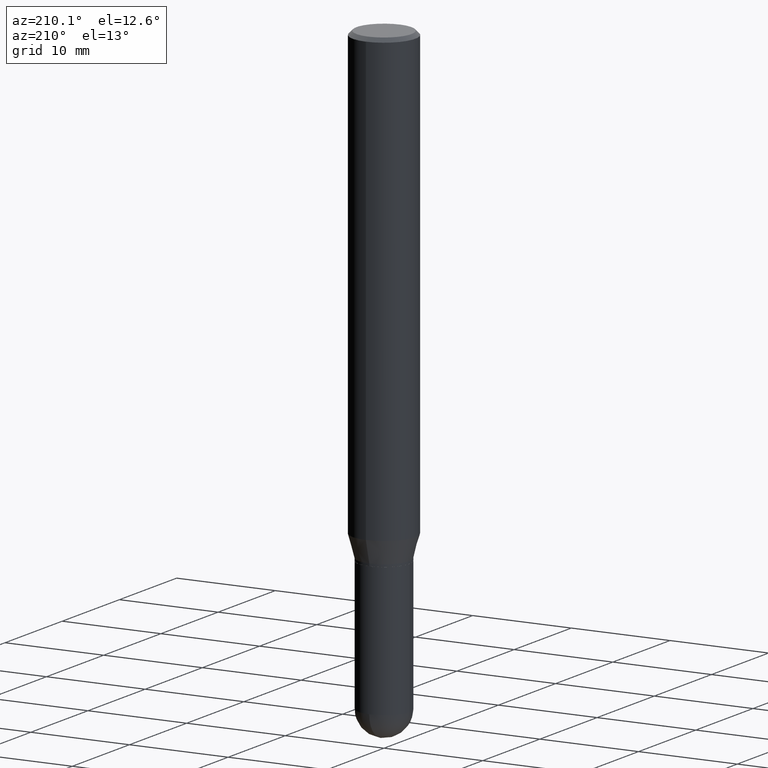
[diagram: clean part render]
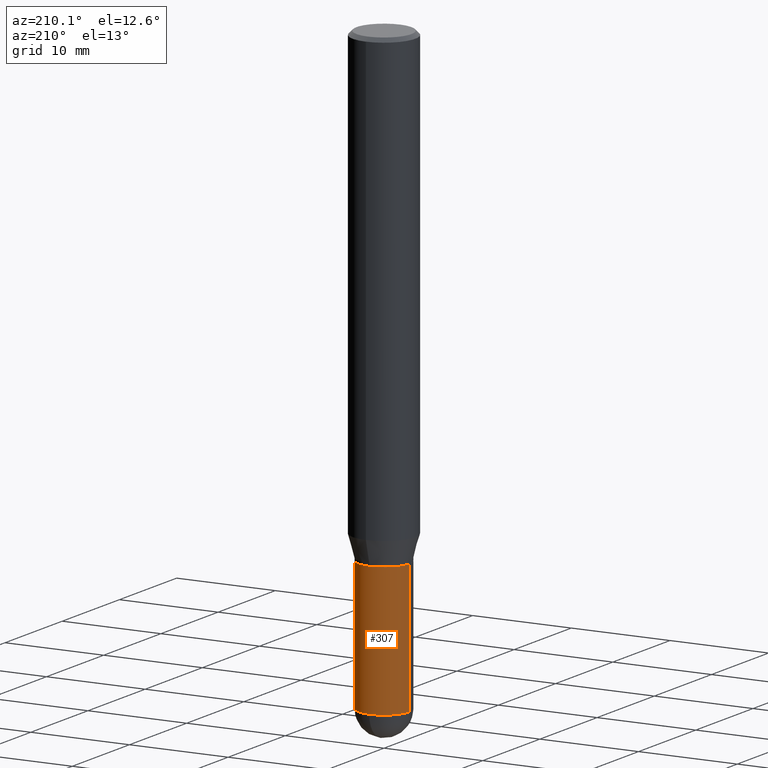
[diagram: same view with one face highlighted and labeled with its STEP entity id]
A machine part, auxiliary view. The second image highlights one B-rep face of the part: STEP entity #307.
In plain terms, the highlighted cylindrical surface (edge-blend (fillet) strip) has radius 2.5794 mm, axis along (-0, 0, 1).
Its self-contained STEP definition (entity closure, byte-faithful):
#14 = CARTESIAN_POINT ( 'NONE',  ( -0.1015500000000000708, 7.215561481643822416E-16, -4.995178584153860605E-30 ) ) ;
#25 = VECTOR ( 'NONE', #346, 39.37007874015748143 ) ;
#26 = CARTESIAN_POINT ( 'NONE',  ( -0.1015500000000000708, -6.738779315575238500E-15, -1.875000000000000000 ) ) ;
#37 = CYLINDRICAL_SURFACE ( 'NONE', #480, 0.1015500000000000708 ) ;
#38 = CARTESIAN_POINT ( 'NONE',  ( -0.1015500000000000985, -6.738779315575238500E-15, -2.398450000000000415 ) ) ;
#40 = AXIS2_PLACEMENT_3D ( 'NONE', #334, #251, #210 ) ;
#47 = DIRECTION ( 'NONE',  ( 1.000000000000000000, -6.982962677686269866E-15, 0.000000000000000000 ) ) ;
#57 = EDGE_CURVE ( 'NONE', #399, #166, #139, .T. ) ;
#64 = DIRECTION ( 'NONE',  ( 1.000000000000000000, -6.982962677686258033E-15, 0.000000000000000000 ) ) ;
#76 = CARTESIAN_POINT ( 'NONE',  ( 0.1015500000000000708, -7.255647370249939489E-15, -1.875000000000000000 ) ) ;
#103 = CARTESIAN_POINT ( 'NONE',  ( 0.1015500000000000985, -8.169455323658661228E-15, -2.398450000000000415 ) ) ;
#139 = CIRCLE ( 'NONE', #232, 0.1015500000000000985 ) ;
#152 = CARTESIAN_POINT ( 'NONE',  ( 0.1015500000000000708, -7.091198599190408807E-16, 4.951757515820776576E-30 ) ) ;
#156 = LINE ( 'NONE', #152, #25 ) ;
#161 = CARTESIAN_POINT ( 'NONE',  ( 0.000000000000000000, 0.000000000000000000, 0.000000000000000000 ) ) ;
#166 = VERTEX_POINT ( 'NONE', #189 ) ;
#184 = ORIENTED_EDGE ( 'NONE', *, *, #57, .T. ) ;
#189 = CARTESIAN_POINT ( 'NONE',  ( 7.091198599190993550E-16, 0.1015499999999916747, -2.398450000000000415 ) ) ;
#194 = EDGE_CURVE ( 'NONE', #399, #203, #156, .T. ) ;
#203 = VERTEX_POINT ( 'NONE', #76 ) ;
#210 = DIRECTION ( 'NONE',  ( 1.000000000000000000, -6.982962677686258033E-15, 0.000000000000000000 ) ) ;
#223 = VECTOR ( 'NONE', #447, 39.37007874015748143 ) ;
#232 = AXIS2_PLACEMENT_3D ( 'NONE', #302, #263, #64 ) ;
#236 = FACE_OUTER_BOUND ( 'NONE', #262, .T. ) ;
#248 = VERTEX_POINT ( 'NONE', #26 ) ;
#251 = DIRECTION ( 'NONE',  ( -2.445468806185136597E-29, 3.491481338843145583E-15, 1.000000000000000000 ) ) ;
#262 = EDGE_LOOP ( 'NONE', ( #407, #292, #294, #319, #184 ) ) ;
#263 = DIRECTION ( 'NONE',  ( -2.445468806185136597E-29, 3.491481338843145583E-15, 1.000000000000000000 ) ) ;
#269 = EDGE_CURVE ( 'NONE', #203, #248, #309, .T. ) ;
#292 = ORIENTED_EDGE ( 'NONE', *, *, #403, .T. ) ;
#294 = ORIENTED_EDGE ( 'NONE', *, *, #269, .F. ) ;
#302 = CARTESIAN_POINT ( 'NONE',  ( 5.865334658194741045E-29, -8.374143417148343763E-15, -2.398450000000000415 ) ) ;
#307 = ADVANCED_FACE ( 'NONE', ( #236 ), #37, .T. ) ;
#309 = CIRCLE ( 'NONE', #326, 0.1015500000000000708 ) ;
#319 = ORIENTED_EDGE ( 'NONE', *, *, #194, .F. ) ;
#325 = DIRECTION ( 'NONE',  ( -2.445468806185136597E-29, 3.491481338843145583E-15, 1.000000000000000000 ) ) ;
#326 = AXIS2_PLACEMENT_3D ( 'NONE', #475, #357, #47 ) ;
#334 = CARTESIAN_POINT ( 'NONE',  ( 5.865334658194741045E-29, -8.374143417148343763E-15, -2.398450000000000415 ) ) ;
#346 = DIRECTION ( 'NONE',  ( -2.445468806185136877E-29, 3.491481338843145188E-15, 1.000000000000000000 ) ) ;
#357 = DIRECTION ( 'NONE',  ( -2.445468806185136597E-29, 3.491481338843145583E-15, 1.000000000000000000 ) ) ;
#367 = VERTEX_POINT ( 'NONE', #38 ) ;
#399 = VERTEX_POINT ( 'NONE', #103 ) ;
#403 = EDGE_CURVE ( 'NONE', #367, #248, #409, .T. ) ;
#407 = ORIENTED_EDGE ( 'NONE', *, *, #422, .T. ) ;
#409 = LINE ( 'NONE', #14, #223 ) ;
#422 = EDGE_CURVE ( 'NONE', #166, #367, #441, .T. ) ;
#441 = CIRCLE ( 'NONE', #40, 0.1015500000000000985 ) ;
#447 = DIRECTION ( 'NONE',  ( -2.445468806185136877E-29, 3.491481338843145188E-15, 1.000000000000000000 ) ) ;
#475 = CARTESIAN_POINT ( 'NONE',  ( 4.585254011597131119E-29, -6.546527510330898707E-15, -1.875000000000000000 ) ) ;
#480 = AXIS2_PLACEMENT_3D ( 'NONE', #161, #325, #481 ) ;
#481 = DIRECTION ( 'NONE',  ( 1.000000000000000000, -6.982962677686266711E-15, 4.876176775795936353E-29 ) ) ;